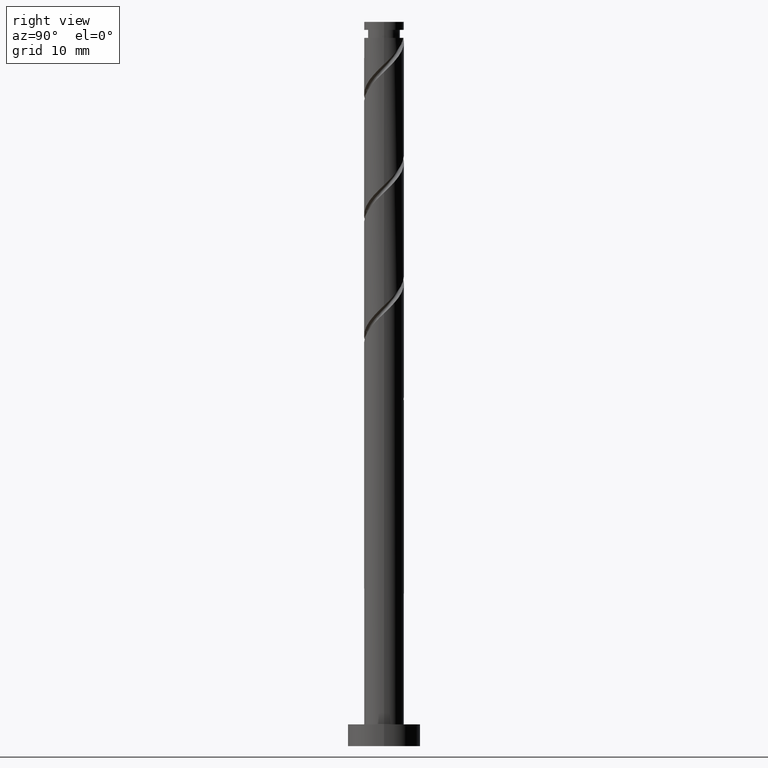
[diagram: clean part render]
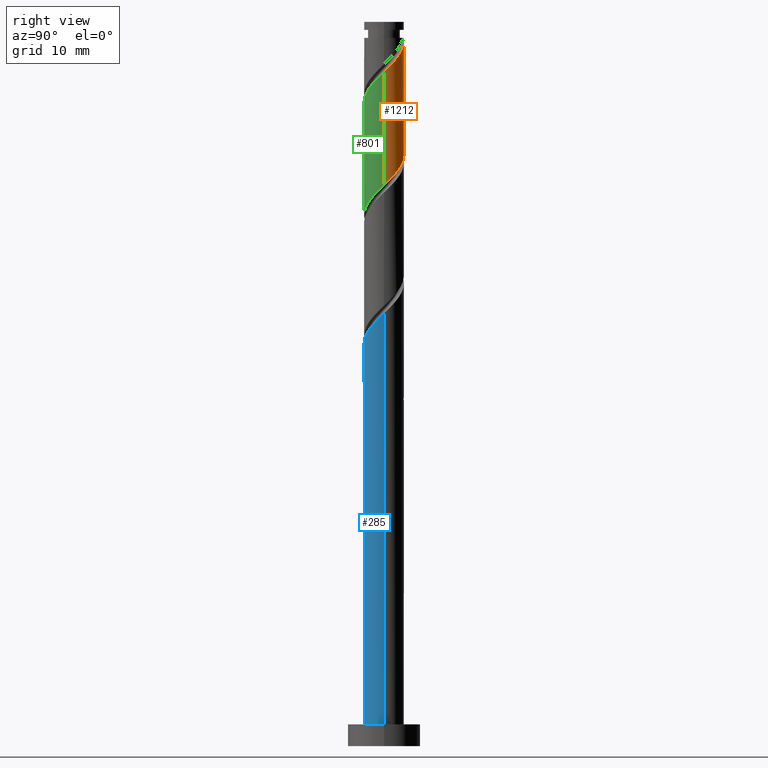
[diagram: same view with three faces highlighted in distinct colors, each labeled with its STEP entity id]
A machine part, right view with three faces highlighted in distinct colors.
Their STEP definitions:

[orange] entity #1212 — the highlighted cylindrical surface (edge-blend (fillet) strip) has radius 2.75 mm, axis along (-0, -0, -1).
#33 = CARTESIAN_POINT ( 'NONE',  ( 2.750000000000003109, 1.243668965028898086E-15, 93.08928608038509367 ) ) ;
#84 = CARTESIAN_POINT ( 'NONE',  ( 1.022444303417953781, 2.598506278154675275, 80.65717800574418561 ) ) ;
#91 = CARTESIAN_POINT ( 'NONE',  ( -1.739150297066324180, 2.184715879791969684, 83.43495578352195707 ) ) ;
#98 = CARTESIAN_POINT ( 'NONE',  ( 2.750000000000003553, 1.243668965028898086E-15, 93.08928608038509367 ) ) ;
#99 = CARTESIAN_POINT ( 'NONE',  ( 0.07204187739932761680, 2.791493721845324405, 81.58310393167009522 ) ) ;
#110 = CARTESIAN_POINT ( 'NONE',  ( 2.750000000000003997, 0.03547960441306015344, 93.12330345431745116 ) ) ;
#179 = CARTESIAN_POINT ( 'NONE',  ( -2.381483538923157894, 1.458136956886804336, 84.36088170944789510 ) ) ;
#185 = DIRECTION ( 'NONE',  ( -0.000000000000000000, -0.000000000000000000, -1.000000000000000000 ) ) ;
#189 = VERTEX_POINT ( 'NONE', #1059 ) ;
#191 = CARTESIAN_POINT ( 'NONE',  ( -0.4075039924296016136, 2.719639773233567759, 82.04606689463304292 ) ) ;
#193 = EDGE_CURVE ( 'NONE', #312, #189, #578, .T. ) ;
#195 = ORIENTED_EDGE ( 'NONE', *, *, #941, .T. ) ;
#205 = CARTESIAN_POINT ( 'NONE',  ( -0.07204187739932711720, 2.791493721845329290, 97.32384467241088544 ) ) ;
#218 = DIRECTION ( 'NONE',  ( -0.000000000000000000, -0.000000000000000000, -1.000000000000000000 ) ) ;
#231 = EDGE_CURVE ( 'NONE', #1215, #430, #1229, .T. ) ;
#247 = ORIENTED_EDGE ( 'NONE', *, *, #193, .F. ) ;
#312 = VERTEX_POINT ( 'NONE', #98 ) ;
#414 = VECTOR ( 'NONE', #218, 1000.000000000000000 ) ;
#426 = CARTESIAN_POINT ( 'NONE',  ( 0.5472430904086413861, 2.695000000000000728, 81.12014096870716173 ) ) ;
#430 = VERTEX_POINT ( 'NONE', #693 ) ;
#440 = FACE_OUTER_BOUND ( 'NONE', #508, .T. ) ;
#461 = CARTESIAN_POINT ( 'NONE',  ( -2.750000000000000000, 0.000000000000000000, 100.0000000000000000 ) ) ;
#477 = CARTESIAN_POINT ( 'NONE',  ( 2.750000000000000000, 5.751502120554104667E-16, 77.48432919036254418 ) ) ;
#508 = EDGE_LOOP ( 'NONE', ( #247, #659, #751, #665, #195 ) ) ;
#533 = CARTESIAN_POINT ( 'NONE',  ( -1.313100079662427699, 2.416250852206890176, 82.97199282055899516 ) ) ;
#539 = CARTESIAN_POINT ( 'NONE',  ( 2.607560008403383200, 0.8735735816606129411, 78.34236319092933343 ) ) ;
#546 = CARTESIAN_POINT ( 'NONE',  ( 2.381483538923164556, 1.458136956886804780, 94.54606689463305713 ) ) ;
#547 = CARTESIAN_POINT ( 'NONE',  ( 2.151525136548019468, 1.712728696204400158, 79.26828911685528567 ) ) ;
#555 = CARTESIAN_POINT ( 'NONE',  ( 2.453525416322486219, 1.333356764958520735, 78.80532615389230955 ) ) ;
#578 =( BOUNDED_CURVE ( )  B_SPLINE_CURVE ( 2, ( #33, #110, #1359, #774, #1335, #546, #760, #1253, #673, #1482, #880, #205, #1241 ),
 .UNSPECIFIED., .F., .T. ) 
 B_SPLINE_CURVE_WITH_KNOTS ( ( 3, 2, 2, 2, 2, 2, 3 ),
 ( 0.6795248053855291737, 0.6805555555555555802, 0.6944444444444444198, 0.7083333333333332593, 0.7222222222222222099, 0.7361111111111111605, 0.7500000000000000000 ),
 .UNSPECIFIED. ) 
 CURVE ( )  GEOMETRIC_REPRESENTATION_ITEM ( )  RATIONAL_B_SPLINE_CURVE ( ( 0.9071930855141280281, 0.9080659294509756396, 0.9090909090909156109, 0.8952797754656500739, 0.9090909090909156109, 0.8952797754656500739, 0.9090909090909156109, 0.8952797754656500739, 0.9090909090909156109, 0.8952797754656500739, 0.9090909090909156109, 0.8952797754656500739, 0.9090909090909156109 ) ) 
 REPRESENTATION_ITEM ( '' )  );
#659 = ORIENTED_EDGE ( 'NONE', *, *, #1384, .T. ) ;
#665 = ORIENTED_EDGE ( 'NONE', *, *, #231, .F. ) ;
#671 = CIRCLE ( 'NONE', #1045, 2.750000000000000000 ) ;
#673 = CARTESIAN_POINT ( 'NONE',  ( 1.313100079662431030, 2.416250852206893729, 95.93495578352197128 ) ) ;
#681 = VECTOR ( 'NONE', #791, 1000.000000000000000 ) ;
#693 = CARTESIAN_POINT ( 'NONE',  ( -2.749999999999999556, -1.852431851814829013E-15, 85.81766252369592962 ) ) ;
#750 = CARTESIAN_POINT ( 'NONE',  ( -2.736574719032083269, 0.5556851971715306426, 85.28680763537380471 ) ) ;
#751 = ORIENTED_EDGE ( 'NONE', *, *, #1185, .F. ) ;
#756 = CARTESIAN_POINT ( 'NONE',  ( 0.000000000000000000, 0.000000000000000000, 100.0000000000000000 ) ) ;
#760 = CARTESIAN_POINT ( 'NONE',  ( 2.060316917994744923, 1.821426418339390008, 95.00902985759604746 ) ) ;
#763 = CARTESIAN_POINT ( 'NONE',  ( -0.8870498622585309967, 2.647785824621811113, 82.50902985759601904 ) ) ;
#769 = CYLINDRICAL_SURFACE ( 'NONE', #1031, 2.750000000000000000 ) ;
#774 = CARTESIAN_POINT ( 'NONE',  ( 2.736574719032087266, 0.5556851971715304206, 93.62014096870714752 ) ) ;
#791 = DIRECTION ( 'NONE',  ( -0.000000000000000000, -0.000000000000000000, -1.000000000000000000 ) ) ;
#841 = DIRECTION ( 'NONE',  ( -0.000000000000000000, -0.000000000000000000, -1.000000000000000000 ) ) ;
#864 = CARTESIAN_POINT ( 'NONE',  ( 1.849524856773552051, 2.092100627450279582, 79.73125207981827600 ) ) ;
#880 = CARTESIAN_POINT ( 'NONE',  ( 0.4075039924296049998, 2.719639773233572644, 96.86088170944789510 ) ) ;
#904 = LINE ( 'NONE', #1367, #681 ) ;
#941 = EDGE_CURVE ( 'NONE', #1215, #189, #671, .T. ) ;
#1014 = CARTESIAN_POINT ( 'NONE',  ( -2.750000000000000000, 0.000000000000000000, 97.78680763537381893 ) ) ;
#1031 = AXIS2_PLACEMENT_3D ( 'NONE', #756, #185, #1221 ) ;
#1045 = AXIS2_PLACEMENT_3D ( 'NONE', #1385, #841, #1294 ) ;
#1059 = CARTESIAN_POINT ( 'NONE',  ( -0.5472430904085988645, 2.695000000000006946, 97.78680763537376208 ) ) ;
#1095 = CARTESIAN_POINT ( 'NONE',  ( 1.435984580095754248, 2.345303452802475874, 80.19421504278122370 ) ) ;
#1114 = CARTESIAN_POINT ( 'NONE',  ( -2.559029128977621248, 1.006911077029167600, 84.82384467241082859 ) ) ;
#1122 = CARTESIAN_POINT ( 'NONE',  ( -2.749999999999999556, 0.03547960441305507417, 85.78364514976357214 ) ) ;
#1185 = EDGE_CURVE ( 'NONE', #430, #1334, #1209, .T. ) ;
#1209 =( BOUNDED_CURVE ( )  B_SPLINE_CURVE ( 2, ( #1329, #1122, #1455, #750, #1114, #179, #1347, #91, #533, #763, #191, #99, #426, #84, #1095, #864, #547, #555, #539, #1230, #1464 ),
 .UNSPECIFIED., .F., .T. ) 
 B_SPLINE_CURVE_WITH_KNOTS ( ( 3, 2, 2, 2, 2, 2, 2, 2, 2, 2, 3 ),
 ( 0.4295248053855290071, 0.4305555555555555802, 0.4444444444444444198, 0.4583333333333333148, 0.4722222222222222099, 0.4861111111111111049, 0.5000000000000000000, 0.5138888888888888395, 0.5277777777777777901, 0.5416666666666666297, 0.5545248053855291737 ),
 .UNSPECIFIED. ) 
 CURVE ( )  GEOMETRIC_REPRESENTATION_ITEM ( )  RATIONAL_B_SPLINE_CURVE ( ( 0.9071930855141213668, 0.9080659294509689783, 0.9090909090909090606, 0.8952797754656436346, 0.9090909090909090606, 0.8952797754656436346, 0.9090909090909090606, 0.8952797754656436346, 0.9090909090909090606, 0.8952797754656436346, 0.9090909090909090606, 0.8952797754656436346, 0.9090909090909090606, 0.8952797754656436346, 0.9090909090909090606, 0.8952797754656436346, 0.9090909090909090606, 0.8952797754656436346, 0.9090909090909090606, 0.8963047551055836060, 0.9071930855141214778 ) ) 
 REPRESENTATION_ITEM ( '' )  );
#1212 = ADVANCED_FACE ( 'NONE', ( #440 ), #769, .T. ) ;
#1215 = VERTEX_POINT ( 'NONE', #1014 ) ;
#1221 = DIRECTION ( 'NONE',  ( -1.000000000000000000, 0.000000000000000000, 0.000000000000000000 ) ) ;
#1229 = LINE ( 'NONE', #461, #414 ) ;
#1230 = CARTESIAN_POINT ( 'NONE',  ( 2.750000000000000888, 0.4483995225062506473, 77.91424870272820158 ) ) ;
#1241 = CARTESIAN_POINT ( 'NONE',  ( -0.5472430904085988645, 2.695000000000006946, 97.78680763537376208 ) ) ;
#1253 = CARTESIAN_POINT ( 'NONE',  ( 1.739150297066327955, 2.184715879791973236, 95.47199282055899516 ) ) ;
#1294 = DIRECTION ( 'NONE',  ( -1.000000000000000000, 0.000000000000000000, 0.000000000000000000 ) ) ;
#1329 = CARTESIAN_POINT ( 'NONE',  ( -2.749999999999999556, -1.852431851814829013E-15, 85.81766252369592962 ) ) ;
#1334 = VERTEX_POINT ( 'NONE', #477 ) ;
#1335 = CARTESIAN_POINT ( 'NONE',  ( 2.559029128977626133, 1.006911077029167378, 94.08310393167012364 ) ) ;
#1347 = CARTESIAN_POINT ( 'NONE',  ( -2.060316917994741370, 1.821426418339387121, 83.89791874648490477 ) ) ;
#1359 = CARTESIAN_POINT ( 'NONE',  ( 2.749084659758184834, 0.07094739940441256720, 93.15717800574421403 ) ) ;
#1367 = CARTESIAN_POINT ( 'NONE',  ( 2.750000000000000000, 3.367778697655220519E-16, 100.0000000000000000 ) ) ;
#1384 = EDGE_CURVE ( 'NONE', #312, #1334, #904, .T. ) ;
#1385 = CARTESIAN_POINT ( 'NONE',  ( 0.000000000000000000, 0.000000000000000000, 97.78680763537381893 ) ) ;
#1455 = CARTESIAN_POINT ( 'NONE',  ( -2.749084659758180393, 0.07094739940441290027, 85.74977059833679505 ) ) ;
#1464 = CARTESIAN_POINT ( 'NONE',  ( 2.750000000000000000, 5.751502120554104667E-16, 77.48432919036254418 ) ) ;
#1482 = CARTESIAN_POINT ( 'NONE',  ( 0.8870498622585347714, 2.647785824621814665, 96.39791874648493319 ) ) ;

[blue] entity #285 — the highlighted cylindrical surface (edge-blend (fillet) strip) has radius 2.75 mm, axis along (-0, -0, -1).
#55 = CARTESIAN_POINT ( 'NONE',  ( -1.739150297066327511, -2.184715879791973236, 53.80532615389232376 ) ) ;
#69 = CARTESIAN_POINT ( 'NONE',  ( 0.07204187739932632617, -2.791493721845330178, 55.65717800574419982 ) ) ;
#86 = CARTESIAN_POINT ( 'NONE',  ( 2.607560008403385865, -0.8735735816606161608, 58.89791874648493319 ) ) ;
#87 = EDGE_CURVE ( 'NONE', #1047, #273, #373, .T. ) ;
#158 = EDGE_LOOP ( 'NONE', ( #812, #759, #467, #1387 ) ) ;
#175 = CARTESIAN_POINT ( 'NONE',  ( -2.381483538923164556, -1.458136956886806113, 52.87940022796639283 ) ) ;
#197 = VERTEX_POINT ( 'NONE', #561 ) ;
#200 = CARTESIAN_POINT ( 'NONE',  ( 1.435984580095754470, -2.345303452802482091, 57.04606689463307134 ) ) ;
#250 = CARTESIAN_POINT ( 'NONE',  ( 0.000000000000000000, 0.000000000000000000, 3.000000000000000000 ) ) ;
#273 = VERTEX_POINT ( 'NONE', #319 ) ;
#285 = ADVANCED_FACE ( 'NONE', ( #781 ), #1130, .T. ) ;
#286 = CARTESIAN_POINT ( 'NONE',  ( -2.060316917994745811, -1.821426418339388897, 53.34236319092936185 ) ) ;
#319 = CARTESIAN_POINT ( 'NONE',  ( 2.750000000000000000, 3.367778697655220519E-16, 3.000000000000000000 ) ) ;
#344 = VERTEX_POINT ( 'NONE', #594 ) ;
#373 = LINE ( 'NONE', #388, #961 ) ;
#388 = CARTESIAN_POINT ( 'NONE',  ( 2.750000000000000000, 3.367778697655220519E-16, 100.0000000000000000 ) ) ;
#450 =( BOUNDED_CURVE ( )  B_SPLINE_CURVE ( 2, ( #713, #975, #1436, #1177, #635, #175, #286, #55, #729, #627, #1088, #69, #1412, #513, #200, #655, #534, #1116, #86, #556, #549 ),
 .UNSPECIFIED., .F., .T. ) 
 B_SPLINE_CURVE_WITH_KNOTS ( ( 3, 2, 2, 2, 2, 2, 2, 2, 2, 2, 3 ),
 ( 0.05452480538552900019, 0.05555555555555558023, 0.06944444444444441977, 0.08333333333333337034, 0.09722222222222220989, 0.1111111111111111605, 0.1250000000000000000, 0.1388888888888888395, 0.1527777777777777901, 0.1666666666666666297, 0.1795248053855290349 ),
 .UNSPECIFIED. ) 
 CURVE ( )  GEOMETRIC_REPRESENTATION_ITEM ( )  RATIONAL_B_SPLINE_CURVE ( ( 0.9071930855141278061, 0.9080659294509755286, 0.9090909090909156109, 0.8952797754656500739, 0.9090909090909156109, 0.8952797754656500739, 0.9090909090909156109, 0.8952797754656500739, 0.9090909090909156109, 0.8952797754656500739, 0.9090909090909156109, 0.8952797754656500739, 0.9090909090909156109, 0.8952797754656500739, 0.9090909090909156109, 0.8952797754656500739, 0.9090909090909156109, 0.8952797754656500739, 0.9090909090909156109, 0.8963047551055902673, 0.9071930855141276950 ) ) 
 REPRESENTATION_ITEM ( '' )  );
#467 = ORIENTED_EDGE ( 'NONE', *, *, #569, .T. ) ;
#513 = CARTESIAN_POINT ( 'NONE',  ( 1.022444303417954226, -2.598506278154680160, 56.58310393167011654 ) ) ;
#518 = AXIS2_PLACEMENT_3D ( 'NONE', #250, #1027, #684 ) ;
#520 = CARTESIAN_POINT ( 'NONE',  ( 2.750000000000003553, -2.285661881674731789E-15, 59.75595274705172955 ) ) ;
#525 = LINE ( 'NONE', #952, #882 ) ;
#534 = CARTESIAN_POINT ( 'NONE',  ( 2.151525136548022132, -1.712728696204404377, 57.97199282055899516 ) ) ;
#549 = CARTESIAN_POINT ( 'NONE',  ( 2.750000000000003553, -2.285661881674731789E-15, 59.75595274705172955 ) ) ;
#556 = CARTESIAN_POINT ( 'NONE',  ( 2.750000000000003553, -0.4483995225062598067, 59.32603323468610057 ) ) ;
#561 = CARTESIAN_POINT ( 'NONE',  ( -2.750000000000000000, 0.000000000000000000, 3.000000000000000000 ) ) ;
#569 = EDGE_CURVE ( 'NONE', #344, #197, #525, .T. ) ;
#589 = EDGE_CURVE ( 'NONE', #344, #1047, #450, .T. ) ;
#594 = CARTESIAN_POINT ( 'NONE',  ( -2.750000000000003997, 2.296866106584901725E-15, 51.42261941371837253 ) ) ;
#623 = DIRECTION ( 'NONE',  ( -0.000000000000000000, -0.000000000000000000, -1.000000000000000000 ) ) ;
#627 = CARTESIAN_POINT ( 'NONE',  ( -0.8870498622585327730, -2.647785824621815554, 54.73125207981825469 ) ) ;
#635 = CARTESIAN_POINT ( 'NONE',  ( -2.559029128977625245, -1.006911077029168489, 52.41643726500344513 ) ) ;
#655 = CARTESIAN_POINT ( 'NONE',  ( 1.849524856773553161, -2.092100627450284911, 57.50902985759602615 ) ) ;
#684 = DIRECTION ( 'NONE',  ( 1.000000000000000000, 0.000000000000000000, 0.000000000000000000 ) ) ;
#713 = CARTESIAN_POINT ( 'NONE',  ( -2.750000000000003997, 2.296866106584901725E-15, 51.42261941371837253 ) ) ;
#729 = CARTESIAN_POINT ( 'NONE',  ( -1.313100079662430586, -2.416250852206894617, 54.26828911685530699 ) ) ;
#759 = ORIENTED_EDGE ( 'NONE', *, *, #589, .F. ) ;
#767 = CARTESIAN_POINT ( 'NONE',  ( 0.000000000000000000, 0.000000000000000000, 100.0000000000000000 ) ) ;
#781 = FACE_OUTER_BOUND ( 'NONE', #158, .T. ) ;
#812 = ORIENTED_EDGE ( 'NONE', *, *, #87, .F. ) ;
#829 = AXIS2_PLACEMENT_3D ( 'NONE', #767, #1125, #888 ) ;
#842 = EDGE_CURVE ( 'NONE', #197, #273, #964, .T. ) ;
#882 = VECTOR ( 'NONE', #623, 1000.000000000000000 ) ;
#888 = DIRECTION ( 'NONE',  ( -1.000000000000000000, 0.000000000000000000, 0.000000000000000000 ) ) ;
#952 = CARTESIAN_POINT ( 'NONE',  ( -2.750000000000000000, 0.000000000000000000, 100.0000000000000000 ) ) ;
#961 = VECTOR ( 'NONE', #1425, 1000.000000000000000 ) ;
#964 = CIRCLE ( 'NONE', #518, 2.750000000000000000 ) ;
#975 = CARTESIAN_POINT ( 'NONE',  ( -2.750000000000003997, -0.03547960441305431090, 51.45663678765072291 ) ) ;
#1027 = DIRECTION ( 'NONE',  ( 0.000000000000000000, 0.000000000000000000, 1.000000000000000000 ) ) ;
#1047 = VERTEX_POINT ( 'NONE', #520 ) ;
#1088 = CARTESIAN_POINT ( 'NONE',  ( -0.4075039924296033900, -2.719639773233572644, 55.19421504278122370 ) ) ;
#1116 = CARTESIAN_POINT ( 'NONE',  ( 2.453525416322490660, -1.333356764958524288, 58.43495578352197839 ) ) ;
#1125 = DIRECTION ( 'NONE',  ( -0.000000000000000000, -0.000000000000000000, -1.000000000000000000 ) ) ;
#1130 = CYLINDRICAL_SURFACE ( 'NONE', #829, 2.750000000000000000 ) ;
#1177 = CARTESIAN_POINT ( 'NONE',  ( -2.736574719032087266, -0.5556851971715307537, 51.95347430204046901 ) ) ;
#1387 = ORIENTED_EDGE ( 'NONE', *, *, #842, .T. ) ;
#1412 = CARTESIAN_POINT ( 'NONE',  ( 0.5472430904086408310, -2.695000000000004281, 56.12014096870714042 ) ) ;
#1425 = DIRECTION ( 'NONE',  ( -0.000000000000000000, -0.000000000000000000, -1.000000000000000000 ) ) ;
#1436 = CARTESIAN_POINT ( 'NONE',  ( -2.749084659758184834, -0.07094739940441233128, 51.49051133907750710 ) ) ;

[green] entity #801 — the highlighted cylindrical surface (edge-blend (fillet) strip) has radius 2.75 mm, axis along (-0, -0, -1).
#5 = CARTESIAN_POINT ( 'NONE',  ( 2.749084659758180393, -0.07094739940441381620, 77.41643726500340961 ) ) ;
#13 = CARTESIAN_POINT ( 'NONE',  ( 2.750000000000005773, -0.4483995225062554213, 92.65936656801947890 ) ) ;
#17 = CARTESIAN_POINT ( 'NONE',  ( 2.381483538923157894, -1.458136956886805891, 76.02754837611453809 ) ) ;
#98 = CARTESIAN_POINT ( 'NONE',  ( 2.750000000000003553, 1.243668965028898086E-15, 93.08928608038509367 ) ) ;
#119 = CARTESIAN_POINT ( 'NONE',  ( 0.000000000000000000, 0.000000000000000000, 100.0000000000000000 ) ) ;
#130 = CYLINDRICAL_SURFACE ( 'NONE', #579, 2.750000000000000000 ) ;
#135 = CARTESIAN_POINT ( 'NONE',  ( -2.750000000000000444, -0.4483995225062520906, 69.58091536939485877 ) ) ;
#147 = CARTESIAN_POINT ( 'NONE',  ( -0.8870498622585327730, -2.647785824621815554, 88.06458541315156197 ) ) ;
#150 = ORIENTED_EDGE ( 'NONE', *, *, #1365, .F. ) ;
#214 = DIRECTION ( 'NONE',  ( -0.000000000000000000, -0.000000000000000000, -1.000000000000000000 ) ) ;
#221 = CARTESIAN_POINT ( 'NONE',  ( 2.749999999999999556, -0.03547960441306192980, 77.45031181643018670 ) ) ;
#244 = CARTESIAN_POINT ( 'NONE',  ( -1.739150297066327511, -2.184715879791973236, 87.13865948722565236 ) ) ;
#261 = CARTESIAN_POINT ( 'NONE',  ( -2.750000000000003997, -1.236199481755451330E-15, 84.75595274705170823 ) ) ;
#291 =( BOUNDED_CURVE ( )  B_SPLINE_CURVE ( 2, ( #562, #221, #5, #1393, #469, #17, #456, #1247, #370, #591, #364, #1155, #806, #897, #354, #689, #668, #567, #1026, #135, #800 ),
 .UNSPECIFIED., .F., .T. ) 
 B_SPLINE_CURVE_WITH_KNOTS ( ( 3, 2, 2, 2, 2, 2, 2, 2, 2, 2, 3 ),
 ( 0.5545248053855291737, 0.5555555555555555802, 0.5694444444444444198, 0.5833333333333333703, 0.5972222222222222099, 0.6111111111111111605, 0.6250000000000000000, 0.6388888888888888395, 0.6527777777777777901, 0.6666666666666666297, 0.6795248053855291737 ),
 .UNSPECIFIED. ) 
 CURVE ( )  GEOMETRIC_REPRESENTATION_ITEM ( )  RATIONAL_B_SPLINE_CURVE ( ( 0.9071930855141214778, 0.9080659294509690893, 0.9090909090909090606, 0.8952797754656436346, 0.9090909090909090606, 0.8952797754656436346, 0.9090909090909090606, 0.8952797754656436346, 0.9090909090909090606, 0.8952797754656436346, 0.9090909090909090606, 0.8952797754656436346, 0.9090909090909090606, 0.8952797754656436346, 0.9090909090909090606, 0.8952797754656436346, 0.9090909090909090606, 0.8952797754656436346, 0.9090909090909090606, 0.8963047551055836060, 0.9071930855141214778 ) ) 
 REPRESENTATION_ITEM ( '' )  );
#302 = CARTESIAN_POINT ( 'NONE',  ( -2.750000000000003997, -1.236199481755451133E-15, 84.75595274705170823 ) ) ;
#312 = VERTEX_POINT ( 'NONE', #98 ) ;
#353 = EDGE_CURVE ( 'NONE', #1063, #312, #726, .T. ) ;
#354 = CARTESIAN_POINT ( 'NONE',  ( -1.435984580095752916, -2.345303452802476762, 71.86088170944788089 ) ) ;
#356 = DIRECTION ( 'NONE',  ( -0.000000000000000000, -0.000000000000000000, -1.000000000000000000 ) ) ;
#364 = CARTESIAN_POINT ( 'NONE',  ( 0.4075039924296015026, -2.719639773233567759, 73.71273356129971432 ) ) ;
#370 = CARTESIAN_POINT ( 'NONE',  ( 1.313100079662427699, -2.416250852206890176, 74.63865948722565236 ) ) ;
#456 = CARTESIAN_POINT ( 'NONE',  ( 2.060316917994740926, -1.821426418339388009, 75.56458541315159039 ) ) ;
#457 = FACE_OUTER_BOUND ( 'NONE', #860, .T. ) ;
#462 = LINE ( 'NONE', #1373, #642 ) ;
#469 = CARTESIAN_POINT ( 'NONE',  ( 2.559029128977621248, -1.006911077029167156, 76.49051133907751421 ) ) ;
#477 = CARTESIAN_POINT ( 'NONE',  ( 2.750000000000000000, 5.751502120554104667E-16, 77.48432919036254418 ) ) ;
#489 = CARTESIAN_POINT ( 'NONE',  ( -2.736574719032087266, -0.5556851971715307537, 85.28680763537381893 ) ) ;
#562 = CARTESIAN_POINT ( 'NONE',  ( 2.750000000000000000, 5.751502120554104667E-16, 77.48432919036254418 ) ) ;
#567 = CARTESIAN_POINT ( 'NONE',  ( -2.453525416322486219, -1.333356764958521179, 70.47199282055899516 ) ) ;
#579 = AXIS2_PLACEMENT_3D ( 'NONE', #119, #356, #1272 ) ;
#591 = CARTESIAN_POINT ( 'NONE',  ( 0.8870498622585304416, -2.647785824621811557, 74.17569652426270466 ) ) ;
#642 = VECTOR ( 'NONE', #214, 1000.000000000000000 ) ;
#648 = VERTEX_POINT ( 'NONE', #1236 ) ;
#652 = ORIENTED_EDGE ( 'NONE', *, *, #1320, .T. ) ;
#668 = CARTESIAN_POINT ( 'NONE',  ( -2.151525136548019468, -1.712728696204400602, 70.93495578352195707 ) ) ;
#681 = VECTOR ( 'NONE', #791, 1000.000000000000000 ) ;
#687 = CARTESIAN_POINT ( 'NONE',  ( 2.151525136548022132, -1.712728696204404377, 91.30532615389235218 ) ) ;
#689 = CARTESIAN_POINT ( 'NONE',  ( -1.849524856773550496, -2.092100627450280914, 71.39791874648490477 ) ) ;
#696 = CARTESIAN_POINT ( 'NONE',  ( -1.313100079662430586, -2.416250852206894617, 87.60162245018862848 ) ) ;
#706 = CARTESIAN_POINT ( 'NONE',  ( 1.435984580095754470, -2.345303452802482091, 90.37940022796639994 ) ) ;
#715 = CARTESIAN_POINT ( 'NONE',  ( 1.849524856773553161, -2.092100627450284911, 90.84236319092937606 ) ) ;
#726 =( BOUNDED_CURVE ( )  B_SPLINE_CURVE ( 2, ( #261, #1282, #1265, #489, #1062, #797, #932, #244, #696, #147, #1378, #1038, #1275, #1153, #706, #715, #687, #1397, #1168, #13, #918 ),
 .UNSPECIFIED., .F., .T. ) 
 B_SPLINE_CURVE_WITH_KNOTS ( ( 3, 2, 2, 2, 2, 2, 2, 2, 2, 2, 3 ),
 ( 0.5545248053855291737, 0.5555555555555555802, 0.5694444444444444198, 0.5833333333333332593, 0.5972222222222222099, 0.6111111111111111605, 0.6250000000000000000, 0.6388888888888888395, 0.6527777777777777901, 0.6666666666666667407, 0.6795248053855291737 ),
 .UNSPECIFIED. ) 
 CURVE ( )  GEOMETRIC_REPRESENTATION_ITEM ( )  RATIONAL_B_SPLINE_CURVE ( ( 0.9071930855141280281, 0.9080659294509756396, 0.9090909090909156109, 0.8952797754656500739, 0.9090909090909156109, 0.8952797754656500739, 0.9090909090909156109, 0.8952797754656500739, 0.9090909090909156109, 0.8952797754656500739, 0.9090909090909156109, 0.8952797754656500739, 0.9090909090909156109, 0.8952797754656500739, 0.9090909090909156109, 0.8952797754656500739, 0.9090909090909156109, 0.8952797754656500739, 0.9090909090909156109, 0.8963047551055900453, 0.9071930855141280281 ) ) 
 REPRESENTATION_ITEM ( '' )  );
#791 = DIRECTION ( 'NONE',  ( -0.000000000000000000, -0.000000000000000000, -1.000000000000000000 ) ) ;
#797 = CARTESIAN_POINT ( 'NONE',  ( -2.381483538923164556, -1.458136956886806113, 86.21273356129972854 ) ) ;
#800 = CARTESIAN_POINT ( 'NONE',  ( -2.750000000000000000, -1.561122004150399810E-15, 69.15099585702924401 ) ) ;
#801 = ADVANCED_FACE ( 'NONE', ( #457 ), #130, .T. ) ;
#806 = CARTESIAN_POINT ( 'NONE',  ( -0.5472430904086409420, -2.695000000000000728, 72.78680763537379050 ) ) ;
#860 = EDGE_LOOP ( 'NONE', ( #912, #934, #652, #150 ) ) ;
#897 = CARTESIAN_POINT ( 'NONE',  ( -1.022444303417954892, -2.598506278154674831, 72.32384467241084280 ) ) ;
#904 = LINE ( 'NONE', #1367, #681 ) ;
#912 = ORIENTED_EDGE ( 'NONE', *, *, #1384, .F. ) ;
#918 = CARTESIAN_POINT ( 'NONE',  ( 2.750000000000003109, 1.243668965028898086E-15, 93.08928608038509367 ) ) ;
#932 = CARTESIAN_POINT ( 'NONE',  ( -2.060316917994745811, -1.821426418339388897, 86.67569652426270466 ) ) ;
#934 = ORIENTED_EDGE ( 'NONE', *, *, #353, .F. ) ;
#1026 = CARTESIAN_POINT ( 'NONE',  ( -2.607560008403383200, -0.8735735816606121640, 70.00902985759603325 ) ) ;
#1038 = CARTESIAN_POINT ( 'NONE',  ( 0.07204187739932632617, -2.791493721845330178, 88.99051133907754263 ) ) ;
#1062 = CARTESIAN_POINT ( 'NONE',  ( -2.559029128977625245, -1.006911077029168489, 85.74977059833676662 ) ) ;
#1063 = VERTEX_POINT ( 'NONE', #302 ) ;
#1153 = CARTESIAN_POINT ( 'NONE',  ( 1.022444303417954226, -2.598506278154680160, 89.91643726500345224 ) ) ;
#1155 = CARTESIAN_POINT ( 'NONE',  ( -0.07204187739932858825, -2.791493721845325293, 73.24977059833679505 ) ) ;
#1168 = CARTESIAN_POINT ( 'NONE',  ( 2.607560008403385865, -0.8735735816606161608, 92.23125207981827600 ) ) ;
#1236 = CARTESIAN_POINT ( 'NONE',  ( -2.750000000000000000, -1.561122004150399810E-15, 69.15099585702922980 ) ) ;
#1247 = CARTESIAN_POINT ( 'NONE',  ( 1.739150297066323514, -2.184715879791970572, 75.10162245018862848 ) ) ;
#1265 = CARTESIAN_POINT ( 'NONE',  ( -2.749084659758184834, -0.07094739940441233128, 84.82384467241084280 ) ) ;
#1272 = DIRECTION ( 'NONE',  ( -1.000000000000000000, 0.000000000000000000, 0.000000000000000000 ) ) ;
#1275 = CARTESIAN_POINT ( 'NONE',  ( 0.5472430904086408310, -2.695000000000004281, 89.45347430204047612 ) ) ;
#1282 = CARTESIAN_POINT ( 'NONE',  ( -2.750000000000003997, -0.03547960441306004936, 84.78997012098407993 ) ) ;
#1320 = EDGE_CURVE ( 'NONE', #1063, #648, #462, .T. ) ;
#1334 = VERTEX_POINT ( 'NONE', #477 ) ;
#1365 = EDGE_CURVE ( 'NONE', #1334, #648, #291, .T. ) ;
#1367 = CARTESIAN_POINT ( 'NONE',  ( 2.750000000000000000, 3.367778697655220519E-16, 100.0000000000000000 ) ) ;
#1373 = CARTESIAN_POINT ( 'NONE',  ( -2.750000000000000000, 0.000000000000000000, 100.0000000000000000 ) ) ;
#1378 = CARTESIAN_POINT ( 'NONE',  ( -0.4075039924296033900, -2.719639773233572644, 88.52754837611453809 ) ) ;
#1384 = EDGE_CURVE ( 'NONE', #312, #1334, #904, .T. ) ;
#1393 = CARTESIAN_POINT ( 'NONE',  ( 2.736574719032083269, -0.5556851971715309757, 76.95347430204049033 ) ) ;
#1397 = CARTESIAN_POINT ( 'NONE',  ( 2.453525416322490660, -1.333356764958524288, 91.76828911685528567 ) ) ;